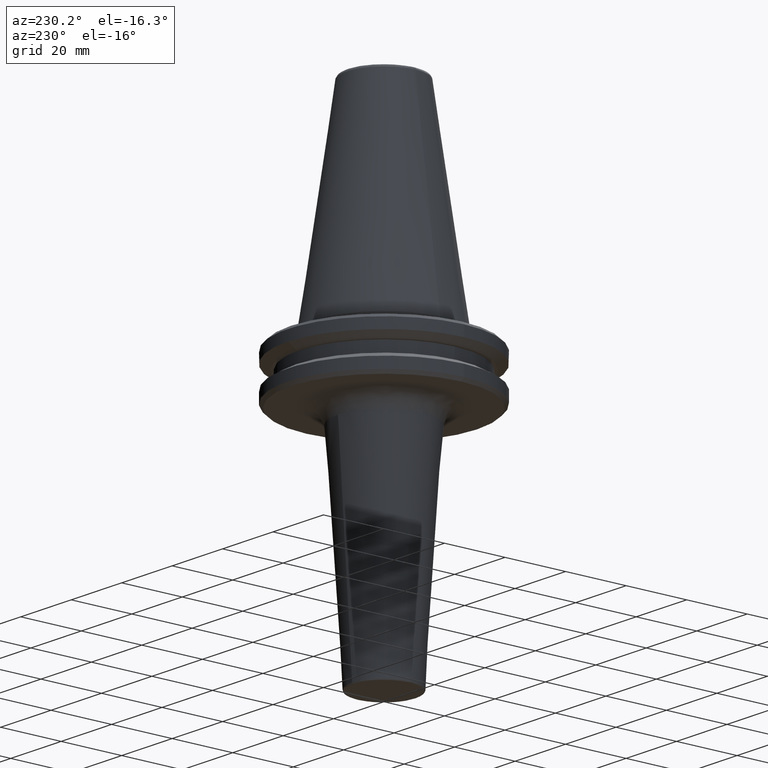
[diagram: clean part render]
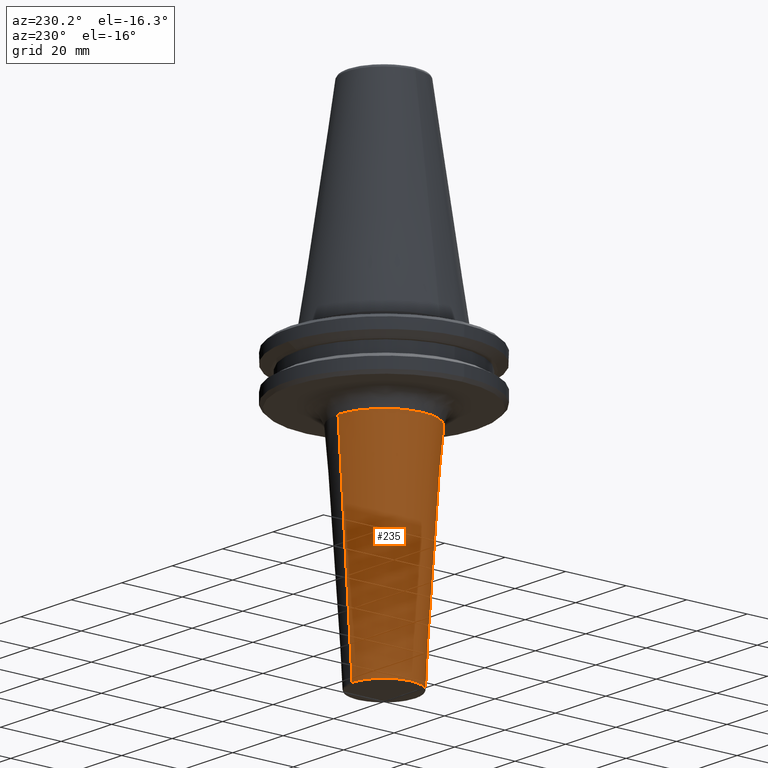
[diagram: same view with one face highlighted and labeled with its STEP entity id]
A machine part, auxiliary view. The second image highlights one B-rep face of the part: STEP entity #235.
In plain terms, the highlighted conical surface has half-angle 3.814 deg.
Its self-contained STEP definition (entity closure, byte-faithful):
#1 = DIRECTION ( 'NONE',  ( 0.0000000000000000000, 0.0000000000000000000, 1.000000000000000000 ) ) ;
#6 = VERTEX_POINT ( 'NONE', #1134 ) ;
#8 = CARTESIAN_POINT ( 'NONE',  ( 0.0000000000000000000, 0.0000000000000000000, -93.72660760420950500 ) ) ;
#13 = ORIENTED_EDGE ( 'NONE', *, *, #1047, .T. ) ;
#43 = VERTEX_POINT ( 'NONE', #1155 ) ;
#131 = EDGE_CURVE ( 'NONE', #6, #1266, #839, .T. ) ;
#143 = ORIENTED_EDGE ( 'NONE', *, *, #1437, .T. ) ;
#169 = DIRECTION ( 'NONE',  ( 8.146229332038881600E-018, 0.06651901052377379200, 0.9977851578566089300 ) ) ;
#229 = AXIS2_PLACEMENT_3D ( 'NONE', #8, #1, #1228 ) ;
#235 = ADVANCED_FACE ( 'NONE', ( #1432 ), #1566, .T. ) ;
#260 = CARTESIAN_POINT ( 'NONE',  ( 0.0000000000000000000, 0.0000000000000000000, -23.76740494738115200 ) ) ;
#273 = CIRCLE ( 'NONE', #229, 10.52489282638603100 ) ;
#276 = EDGE_CURVE ( 'NONE', #43, #562, #943, .T. ) ;
#281 = CARTESIAN_POINT ( 'NONE',  ( 1.860096388484165000E-015, 15.18883967017458900, -23.76740494738114900 ) ) ;
#333 = AXIS2_PLACEMENT_3D ( 'NONE', #260, #846, #384 ) ;
#384 = DIRECTION ( 'NONE',  ( 0.0000000000000000000, -1.000000000000000000, -2.284208028587172700E-016 ) ) ;
#400 = LINE ( 'NONE', #281, #835 ) ;
#461 = ORIENTED_EDGE ( 'NONE', *, *, #1463, .F. ) ;
#463 = DIRECTION ( 'NONE',  ( 0.0000000000000000000, 0.0000000000000000000, 1.000000000000000000 ) ) ;
#481 = EDGE_CURVE ( 'NONE', #1108, #1030, #1564, .T. ) ;
#499 = CARTESIAN_POINT ( 'NONE',  ( -15.18883967017458900, 2.165579988435623300E-015, -23.76740494738113800 ) ) ;
#528 = CARTESIAN_POINT ( 'NONE',  ( 0.0000000000000000000, 0.0000000000000000000, -93.72660760420950500 ) ) ;
#555 = CARTESIAN_POINT ( 'NONE',  ( 0.0000000000000000000, -15.18883967017458900, -23.76740494738115600 ) ) ;
#562 = VERTEX_POINT ( 'NONE', #1321 ) ;
#605 = ORIENTED_EDGE ( 'NONE', *, *, #276, .T. ) ;
#664 = CIRCLE ( 'NONE', #731, 15.18883967017458800 ) ;
#719 = ORIENTED_EDGE ( 'NONE', *, *, #131, .T. ) ;
#731 = AXIS2_PLACEMENT_3D ( 'NONE', #838, #824, #798 ) ;
#742 = EDGE_LOOP ( 'NONE', ( #461, #719, #143, #605, #13, #898 ) ) ;
#744 = CARTESIAN_POINT ( 'NONE',  ( -10.52489282638603100, 1.288927631120259500E-015, -93.72660760420950500 ) ) ;
#782 = DIRECTION ( 'NONE',  ( 0.0000000000000000000, -0.06651901052377401400, 0.9977851578566089300 ) ) ;
#798 = DIRECTION ( 'NONE',  ( 1.000000000000000000, 0.0000000000000000000, 0.0000000000000000000 ) ) ;
#824 = DIRECTION ( 'NONE',  ( -0.0000000000000000000, -0.0000000000000000000, -1.000000000000000000 ) ) ;
#835 = VECTOR ( 'NONE', #169, 1000.000000000000000 ) ;
#838 = CARTESIAN_POINT ( 'NONE',  ( 0.0000000000000000000, 0.0000000000000000000, -23.76740494738113800 ) ) ;
#839 = CIRCLE ( 'NONE', #975, 10.52489282638603100 ) ;
#846 = DIRECTION ( 'NONE',  ( 0.0000000000000000000, -1.142104014293586600E-016, 1.000000000000000000 ) ) ;
#898 = ORIENTED_EDGE ( 'NONE', *, *, #481, .T. ) ;
#943 = LINE ( 'NONE', #555, #1003 ) ;
#975 = AXIS2_PLACEMENT_3D ( 'NONE', #528, #463, #1161 ) ;
#1003 = VECTOR ( 'NONE', #782, 1000.000000000000000 ) ;
#1030 = VERTEX_POINT ( 'NONE', #1126 ) ;
#1047 = EDGE_CURVE ( 'NONE', #562, #1108, #664, .T. ) ;
#1108 = VERTEX_POINT ( 'NONE', #499 ) ;
#1126 = CARTESIAN_POINT ( 'NONE',  ( 1.860096388484165000E-015, 15.18883967017458900, -23.76740494738113800 ) ) ;
#1134 = CARTESIAN_POINT ( 'NONE',  ( 1.574512009802211900E-015, 10.52489282638603300, -93.72660760420950500 ) ) ;
#1155 = CARTESIAN_POINT ( 'NONE',  ( 0.0000000000000000000, -10.52489282638603300, -93.72660760420950500 ) ) ;
#1161 = DIRECTION ( 'NONE',  ( 1.000000000000000000, 0.0000000000000000000, 0.0000000000000000000 ) ) ;
#1202 = CARTESIAN_POINT ( 'NONE',  ( 0.0000000000000000000, 0.0000000000000000000, -23.76740494738113800 ) ) ;
#1228 = DIRECTION ( 'NONE',  ( 1.000000000000000000, 0.0000000000000000000, 0.0000000000000000000 ) ) ;
#1229 = DIRECTION ( 'NONE',  ( -0.0000000000000000000, -0.0000000000000000000, -1.000000000000000000 ) ) ;
#1250 = DIRECTION ( 'NONE',  ( 1.000000000000000000, 0.0000000000000000000, 0.0000000000000000000 ) ) ;
#1266 = VERTEX_POINT ( 'NONE', #744 ) ;
#1321 = CARTESIAN_POINT ( 'NONE',  ( 0.0000000000000000000, -15.18883967017459100, -23.76740494738113800 ) ) ;
#1432 = FACE_OUTER_BOUND ( 'NONE', #742, .T. ) ;
#1437 = EDGE_CURVE ( 'NONE', #1266, #43, #273, .T. ) ;
#1463 = EDGE_CURVE ( 'NONE', #6, #1030, #400, .T. ) ;
#1555 = AXIS2_PLACEMENT_3D ( 'NONE', #1202, #1229, #1250 ) ;
#1564 = CIRCLE ( 'NONE', #1555, 15.18883967017458800 ) ;
#1566 = CONICAL_SURFACE ( 'NONE', #333, 15.18883967017458900, 0.06656816377582378000 ) ;